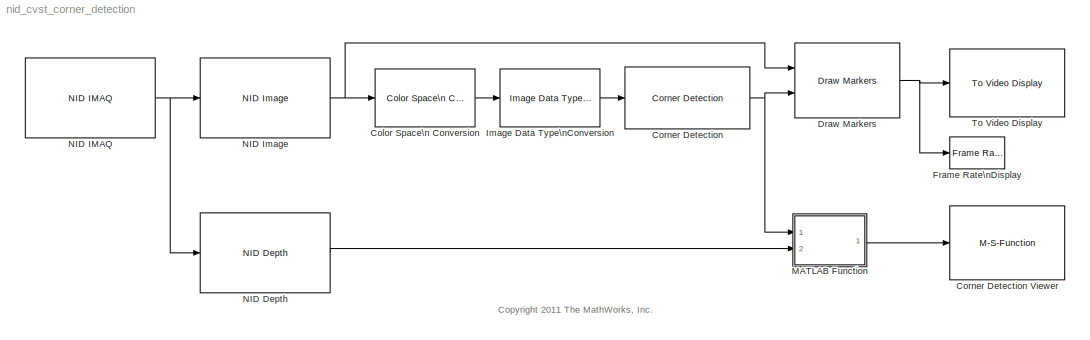
MODEL nid_cvst_corner_detection
KIND model
BLOCK [Reference] Color Space\n Conversion  REF=visionconversions/Color Space\n Conversion
  Ports = [1, 1]
  SID = 16
  SourceBlock = visionconversions/Color Space\n Conversion
  SourceType = Color Space Conversion
  conversion = Obsolete
  conversionActive = R'G'B' to intensity
  imagePorts = One multidimensional signal
  rec = Rec. 601 (SDTV)
  sys = 1125/60/2:1
  wp_str = D65
BLOCK [Reference] Corner Detection  REF=visionanalysis/Corner Detection
  LockScale = off
  Ports = [1, 1]
  SID = 3
  SourceBlock = visionanalysis/Corner Detection
  SourceType = Corner Detection
  accumFracLength = 0
  accumMode = Binary point scaling
  accumWordLength = 32
  factor = 0.1
  filter = fspecial('gaussian', [1 5], 1.5)
  firstCoeffFracLength = 16
  firstCoeffMode = Specify word length
  firstCoeffWordLength = 16
  isOutVarDim = on
  maxNum = 32
  memoryFracLength = 0
  memoryMode = Binary point scaling
  memoryWordLength = 32
  method = Local intensity comparison (Rosen & Drummond)
  neighborSize = [21 21]
  output = Obsolete9b
  outputFracLength = 0
  outputInUse = Corner location
  outputMode = Same as accumulator
  outputWordLength = 32
  overflowMode = off
  prodOutputFracLength = 0
  prodOutputMode = Binary point scaling
  prodOutputWordLength = 32
  roundingMode = Floor
  thrAngle = 112.5
  thrInten = 0.25
  thrMetric = 0.001
BLOCK [M-S-Function] Corner Detection Viewer
  FunctionName = corner_detection_viewer
  MaskDisplay = disp('Corner\\nDetection\\nViewer')\n\nport_label('input', 1, 'XYZ')\n
  MaskIconFrame = on
  MaskIconOpaque = on
  MaskIconRotate = none
  MaskIconUnits = autoscale
  MaskPortRotate = default
  Ports = [1]
  SID = 91
BLOCK [Reference] Draw Markers  REF=visiontextngfix/Draw Markers
  LockScale = off
  Ports = [2, 1]
  SID = 9
  SourceBlock = visiontextngfix/Draw Markers
  SourceType = Draw Markers
  accumFracLength = 14
  accumMode = Same as product output
  accumWordLength = 32
  antialiasing = off
  color = [200 255 100]
  display = User-specified value
  fill = on
  fillClrSource = Specify via dialog
  imagePorts = One multidimensional signal
  inType = Obsolete
  intensity = 200
  memoryFracLength = 14
  memoryMode = Specify word length
  memoryWordLength = 16
  opacity = 0.6
  overflowMode = off
  prodOutputFracLength = 14
  prodOutputMode = Binary point scaling
  prodOutputWordLength = 32
  roundingMode = Floor
  shape = Circle
  size = 3
  viewport = Entire image
BLOCK [Reference] Frame Rate\nDisplay  REF=visionsinks/Frame Rate\nDisplay
  Ports = [1]
  SID = 22
  SourceBlock = visionsinks/Frame Rate\nDisplay
  SourceType = Frame Rate Display
  UpdateRate = 10
BLOCK [Reference] Image Data Type\nConversion  REF=visionconversions/Image Data Type\nConversion
  Ports = [1, 1]
  SID = 18
  SourceBlock = visionconversions/Image Data Type\nConversion
  SourceType = Image Data Type Conversion
  isSigned = on
  numFracBits = 0
  outDT = single
  wordLen = 16
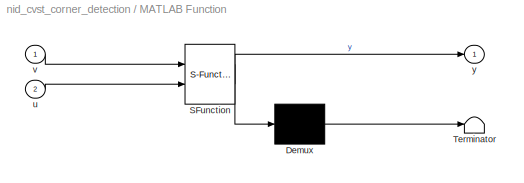
BLOCK [SubSystem] MATLAB Function
  ErrorFcn = Stateflow.Translate.translate
  FunctionWithSeparateData = off
  MaskDescription = Embedded MATLAB block
  MaskDisplay = bgColor = Simulink.Root.ColorString2Rgb(get_param(gcbh, 'BackgroundColor')); image(imread('private/eml_membrane_16.png','png','BackgroundColor',bgColor(1:3)),'center'); disp([10 10 'fcn']);
  MaskHideContents = off
  MaskIconFrame = on
  MaskIconOpaque = off
  MaskIconRotate = none
  MaskIconUnits = normalized
  MaskPortRotate = default
  MaskSelfModifiable = on
  MaskType = Stateflow
  MinAlgLoopOccurrences = off
  Opaque = off
  PermitHierarchicalResolution = ExplicitOnly
  Ports = [2, 1]
  PropExecContextOutsideSubsystem = off
  RTWSystemCode = Auto
  RequestExecContextInheritance = off
  SFBlockType = MATLAB Function
  SID = 39
  TreatAsAtomicUnit = on
BLOCK [Demux] MATLAB Function/ Demux 
  Outputs = 1
  Ports = [1, 1]
  SID = 39::21
BLOCK [S-Function] MATLAB Function/ SFunction 
  EnableBusSupport = on
  FunctionName = sf_sfun
  PortCounts = [2 2]
  Ports = [2, 2]
  SID = 39::20
  Tag = Stateflow S-Function nid_cvst_corner_detection 2
BLOCK [Terminator] MATLAB Function/ Terminator 
  SID = 39::23
BLOCK [Inport] MATLAB Function/u
  IconDisplay = Port number
  Port = 2
  SID = 39::19
BLOCK [Inport] MATLAB Function/v
  IconDisplay = Port number
  SID = 39::18
BLOCK [Outport] MATLAB Function/y
  IconDisplay = Port number
  SID = 39::5
BLOCK [Reference] NID Depth  REF=nid_lib/NID Depth
  Ports = [1, 1]
  SID = 85
  SourceBlock = nid_lib/NID Depth
  SourceType = NID Depth
  conv_XYZ_RW = on
  depthOutput = XYZ
  viewer = off
BLOCK [Reference] NID IMAQ  REF=nid_lib/NID IMAQ
  Ports = [0, 1]
  SID = 1
  SourceBlock = nid_lib/NID IMAQ
  SourceType = NID IMAQ
  imaq_depth = on
  imaq_image = on
  imaq_ir = off
  imaq_motion = off
  imaq_sample_time = 1/30
  imaq_skeleton = off
  mirror_image = off
  res_fps = VGA (640x480): 30 FPS
  view_point = on
BLOCK [Reference] NID Image  REF=nid_lib/NID Image
  Ports = [1, 1]
  SID = 14
  SourceBlock = nid_lib/NID Image
  SourceType = NID Image
  imageOutput = RGB
BLOCK [Reference] To Video Display  REF=visionsinks/To Video Display
  OutputDevice = On-screen video monitor
  Ports = [1]
  SID = 13
  SourceBlock = visionsinks/To Video Display
  SourceType = To Video Display
  dataOrg = Column-major
  fullScreen = off
  imagePorts = One multidimensional signal
  inputColorFormat = RGB
  inputType = Obsolete
  isWindowOpen = off
  openAtMdlStart = on
  saveWindowSize = off
  videoWindowHeight = 240
  videoWindowWidth = 320
  videoWindowX = 55
  videoWindowY = 16
ANNOTATION (root): <copyright redacted>
LINE Color Space\n Conversion:1 -> Image Data Type\nConversion:1
NET Corner Detection:1 -> Draw Markers:2, MATLAB Function:1
NET Draw Markers:1 -> Frame Rate\nDisplay:1, To Video Display:1
LINE Image Data Type\nConversion:1 -> Corner Detection:1
LINE MATLAB Function/ Demux :1 -> MATLAB Function/ Terminator :1
LINE MATLAB Function/ SFunction :1 -> MATLAB Function/ Demux :1
LINE MATLAB Function/ SFunction :2 -> MATLAB Function/y:1
LINE MATLAB Function/u:1 -> MATLAB Function/ SFunction :2
LINE MATLAB Function/v:1 -> MATLAB Function/ SFunction :1
LINE MATLAB Function:1 -> Corner Detection Viewer:1
LINE NID Depth:1 -> MATLAB Function:2
NET NID IMAQ:1 -> NID Depth:1, NID Image:1
NET NID Image:1 -> Color Space\n Conversion:1, Draw Markers:1
note: NET lines group one-source signal fan-out (src -> all destinations, sorted); 1:1 wires keep LINE
CHART MATLAB Function states=1 transitions=1
  STATE_LABEL 'eML_blk_kernel()'
